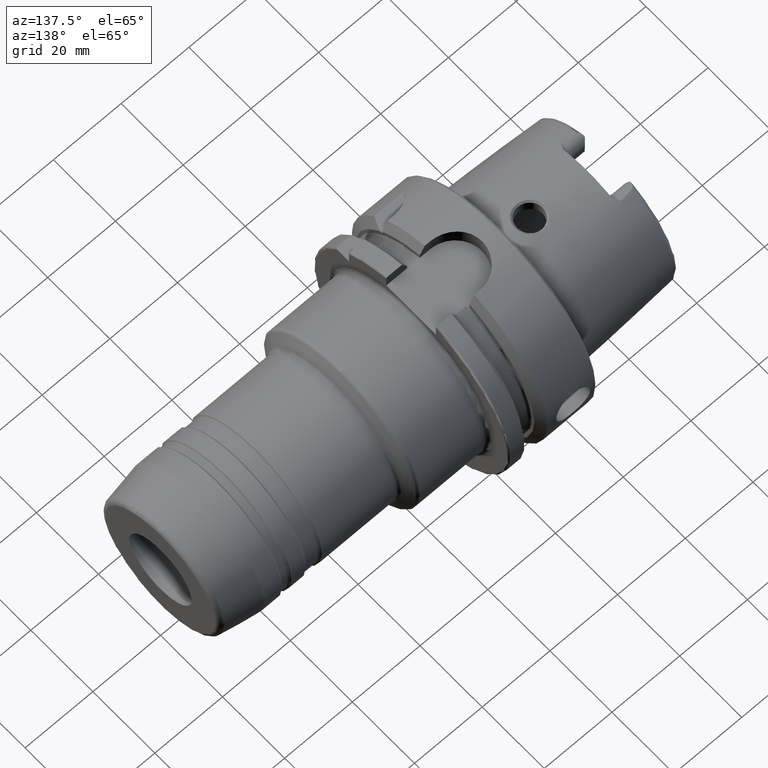
[diagram: clean part render]
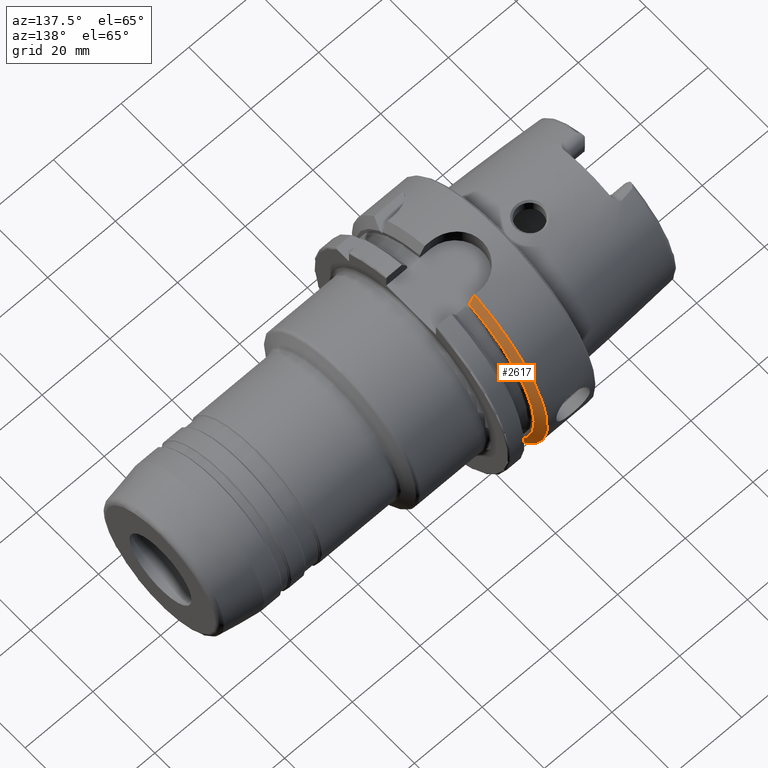
[diagram: same view with one face highlighted and labeled with its STEP entity id]
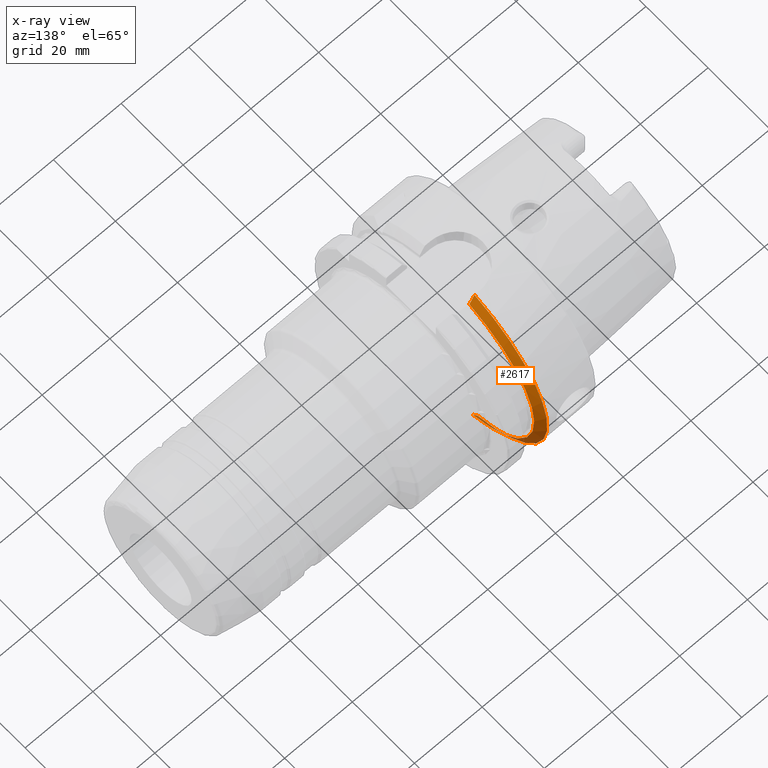
[diagram: x-ray of the same camera — body ghosted, the highlighted face saturated]
A machine part, auxiliary view. The second image highlights one B-rep face of the part: STEP entity #2617.
The next image is the same camera in x-ray: the body ghosted, the highlighted face saturated — about 5% of this face is hidden behind the body in this view.
In plain terms, the highlighted conical surface has half-angle 60 deg.
Its self-contained STEP definition (entity closure, byte-faithful):
#25=(
BOUNDED_CURVE()
B_SPLINE_CURVE(2,(#5216,#5217,#5218),.UNSPECIFIED.,.F.,.F.)
B_SPLINE_CURVE_WITH_KNOTS((3,3),(0.,0.311314369989023),.UNSPECIFIED.)
CURVE()
GEOMETRIC_REPRESENTATION_ITEM()
RATIONAL_B_SPLINE_CURVE((1.,1.00102053193168,1.))
REPRESENTATION_ITEM('')
);
#26=(
BOUNDED_CURVE()
B_SPLINE_CURVE(2,(#5245,#5246,#5247),.UNSPECIFIED.,.F.,.F.)
B_SPLINE_CURVE_WITH_KNOTS((3,3),(0.,0.308905667770379),.UNSPECIFIED.)
CURVE()
GEOMETRIC_REPRESENTATION_ITEM()
RATIONAL_B_SPLINE_CURVE((1.,1.00099999355254,1.))
REPRESENTATION_ITEM('')
);
#106=CONICAL_SURFACE('',#2936,30.1987976320958,1.0471975511966);
#280=FACE_OUTER_BOUND('',#423,.T.);
#423=EDGE_LOOP('',(#2174,#2175,#2176,#2177));
#874=CIRCLE('',#2937,31.5);
#875=CIRCLE('',#2938,28.8975952641916);
#1174=VERTEX_POINT('',#5212);
#1176=VERTEX_POINT('',#5215);
#1179=VERTEX_POINT('',#5242);
#1180=VERTEX_POINT('',#5244);
#1539=EDGE_CURVE('',#1176,#1174,#25,.T.);
#1546=EDGE_CURVE('',#1174,#1179,#874,.T.);
#1547=EDGE_CURVE('',#1179,#1180,#26,.T.);
#1548=EDGE_CURVE('',#1176,#1180,#875,.T.);
#2174=ORIENTED_EDGE('',*,*,#1539,.T.);
#2175=ORIENTED_EDGE('',*,*,#1546,.T.);
#2176=ORIENTED_EDGE('',*,*,#1547,.T.);
#2177=ORIENTED_EDGE('',*,*,#1548,.F.);
#2617=ADVANCED_FACE('',(#280),#106,.T.);
#2936=AXIS2_PLACEMENT_3D('',#5241,#3635,#3636);
#2937=AXIS2_PLACEMENT_3D('',#5243,#3637,#3638);
#2938=AXIS2_PLACEMENT_3D('',#5248,#3639,#3640);
#3635=DIRECTION('center_axis',(-1.,0.,0.));
#3636=DIRECTION('ref_axis',(0.,1.,0.));
#3637=DIRECTION('center_axis',(1.,0.,0.));
#3638=DIRECTION('ref_axis',(0.,0.,-1.));
#3639=DIRECTION('center_axis',(1.,0.,0.));
#3640=DIRECTION('ref_axis',(0.,0.,-1.));
#5212=CARTESIAN_POINT('',(14.6225009252407,9.,-30.1869176962472));
#5215=CARTESIAN_POINT('',(16.125,9.,-27.4603534582684));
#5216=CARTESIAN_POINT('Ctrl Pts',(16.125,9.,-27.4603534582684));
#5217=CARTESIAN_POINT('Ctrl Pts',(15.4092825889713,9.,-28.7648946319065));
#5218=CARTESIAN_POINT('Ctrl Pts',(14.6225009252407,9.00000000000001,-30.1869176962472));
#5241=CARTESIAN_POINT('Origin',(15.3737504626203,0.,0.));
#5242=CARTESIAN_POINT('',(14.6225009252407,8.,30.4671954731642));
#5243=CARTESIAN_POINT('Origin',(14.6225009252407,0.,0.));
#5244=CARTESIAN_POINT('',(16.125,8.,27.7681654426977));
#5245=CARTESIAN_POINT('Ctrl Pts',(14.6225009252407,8.,30.4671954731643));
#5246=CARTESIAN_POINT('Ctrl Pts',(15.4085685702068,8.,29.059532707988));
#5247=CARTESIAN_POINT('Ctrl Pts',(16.125,8.,27.7681654426977));
#5248=CARTESIAN_POINT('Origin',(16.125,0.,0.));